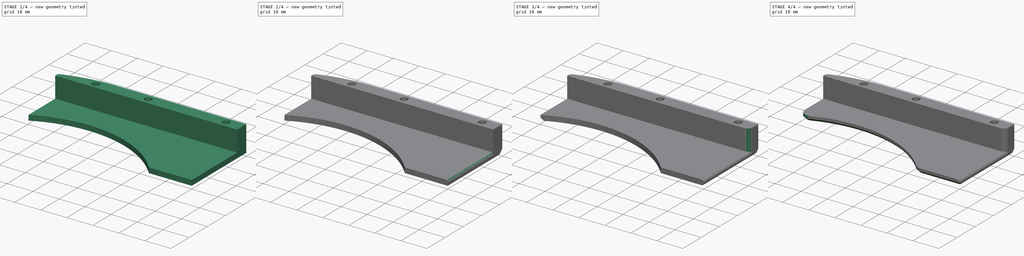
[diagram: build sequence overview — one tinted view per stage of 4, left to right]
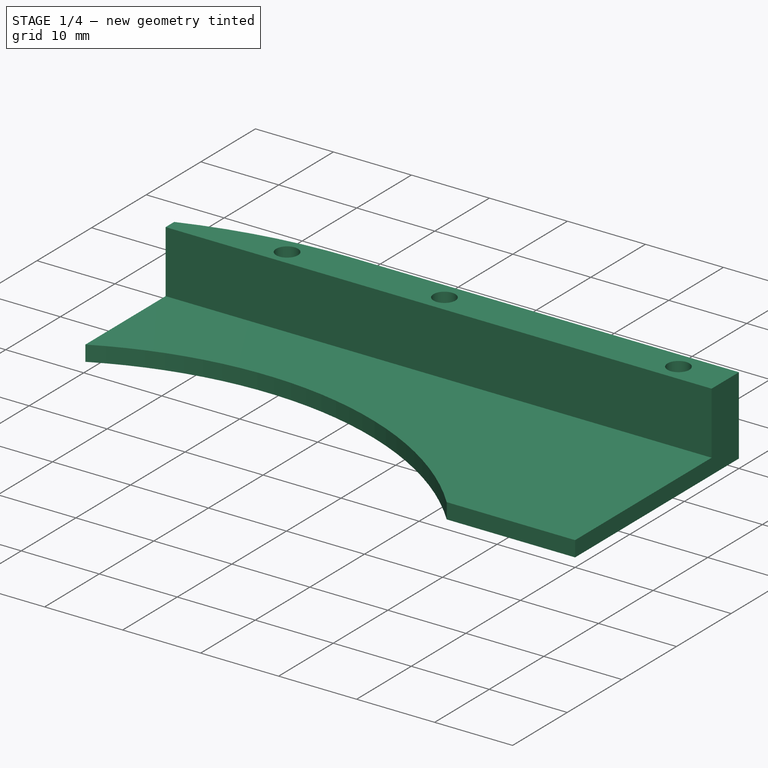
[diagram: stage 1 of 4 — iso view after this stage's code; geometry added in this stage tinted green]
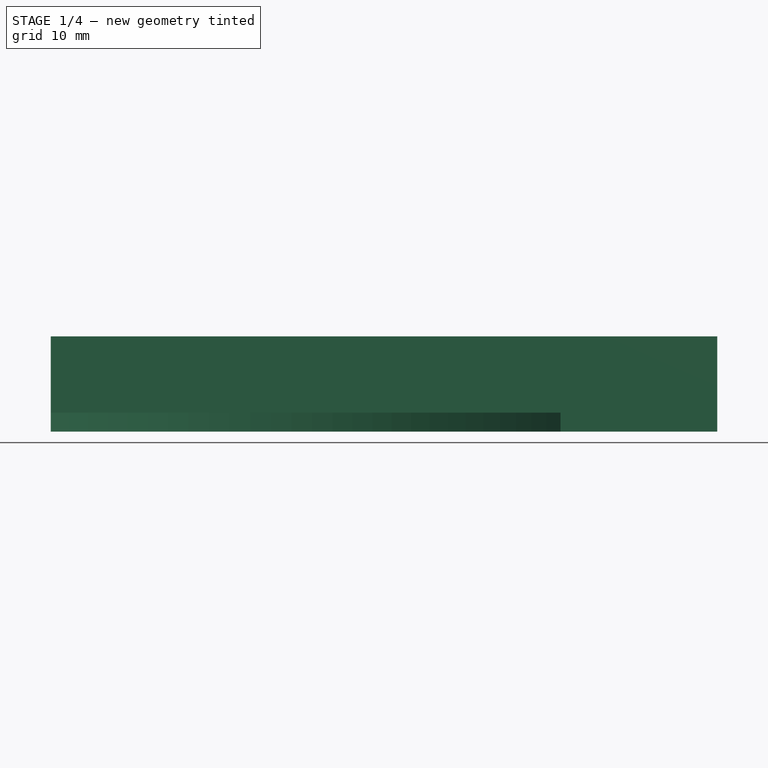
[diagram: stage 1 of 4 — front view after this stage's code; geometry added in this stage tinted green]
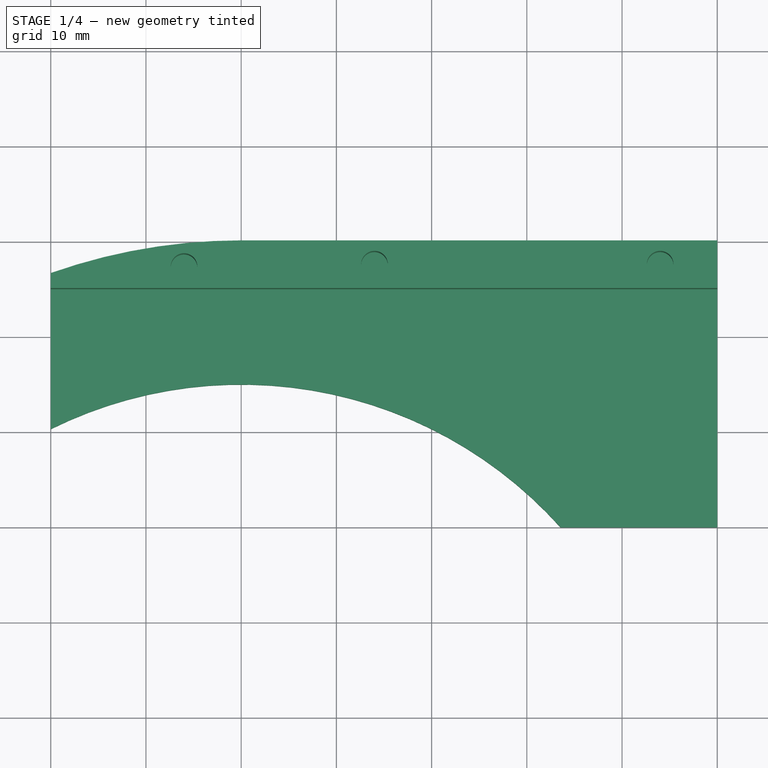
[diagram: stage 1 of 4 — top view after this stage's code; geometry added in this stage tinted green]
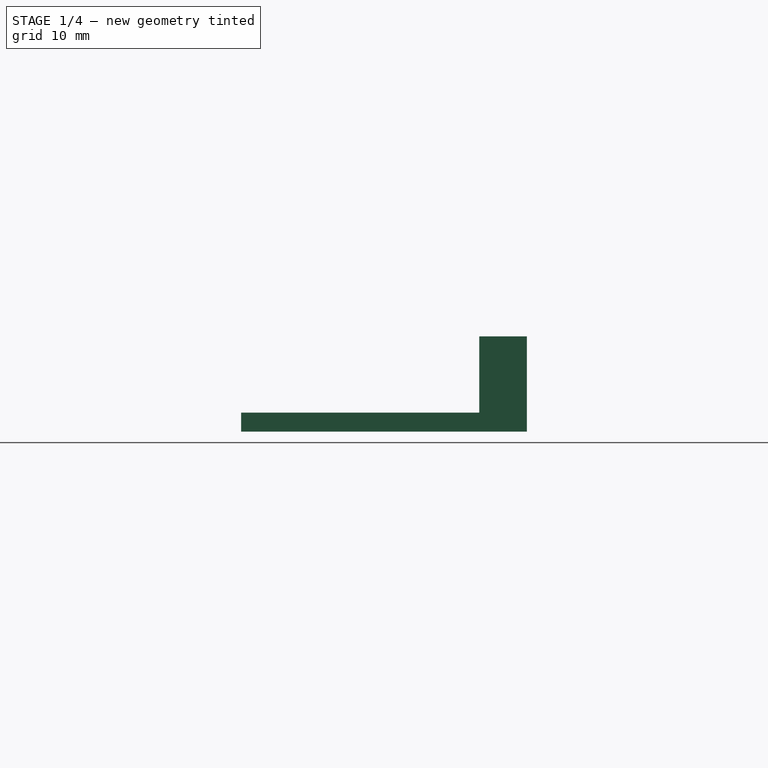
[diagram: stage 1 of 4 — right view after this stage's code; geometry added in this stage tinted green]
FCSTD DOCUMENT  (FreeCAD 0.16R)
Label: out3
License: All rights reserved
LicenseURL: http://en.wikipedia.org/wiki/All_rights_reserved
objects: PartDesign::Fillet×5, Sketcher::SketchObject×4, PartDesign::Chamfer×4, PartDesign::Pad×2, PartDesign::Pocket×1
note: 19 computed .brp shape members not serialized (recipe doc carries the construction recipe); baked Part::Feature solids carry a one-line shape summary decoded from their .brp

FEATURE [Sketcher::SketchObject] Sketch001
  sketch-geometry (10):
    g0: LineSegment [constr] StartX=0 StartY=0 StartZ=0 EndX=43.8558 EndY=143.446 EndZ=0
    g1: Circle [constr] CenterX=0 CenterY=0 CenterZ=0 NormalX=0 NormalY=0 NormalZ=1 Radius=55
    g2: LineSegment [constr] StartX=0 StartY=55 StartZ=0 EndX=150 EndY=55 EndZ=0
    g3: LineSegment StartX=33.541 StartY=30 StartZ=0 EndX=50 EndY=30 EndZ=0
    g4: Circle [constr] CenterX=0 CenterY=0 CenterZ=0 NormalX=0 NormalY=0 NormalZ=1 Radius=35.4
    g5: ArcOfCircle CenterX=0 CenterY=0 CenterZ=0 NormalX=0 NormalY=0 NormalZ=1 Radius=60 StartAngle=1.5708 EndAngle=1.91063
    g6: ArcOfCircle CenterX=0 CenterY=0 CenterZ=0 NormalX=0 NormalY=0 NormalZ=1 Radius=45 StartAngle=0.729728 EndAngle=2.03135
    g7: LineSegment StartX=50 StartY=30 StartZ=0 EndX=50 EndY=60 EndZ=0
    g8: LineSegment StartX=0 StartY=60 StartZ=0 EndX=50 EndY=60 EndZ=0
    g9: LineSegment StartX=-20 StartY=40.3113 StartZ=0 EndX=-20 EndY=56.5685 EndZ=0
  constraints (30):
    c: Coincident(g0,g-1)
    c: Distance(g0) = 150
    c: Angle(g0) = 1.27409
    c: Coincident(g1,g-1)
    c: Radius(g1) = 55
    c: Horizontal(g2)
    c: Horizontal(g3)
    c: Radius(g4) = 35.4
    c: Coincident(g4,g-1)
    c: Coincident(g5,g-1)
    c: Radius(g5) = 60
    c: Coincident(g6,g-1)
    c: Radius(g6) = 45
    c: Vertical(g7)
    c: PointOnObject(g8,g5)
    c: Coincident(g8,g7)
    c: Horizontal(g8)
    c: Coincident(g7,g3)
    c: Coincident(g6,g3)
    c: Coincident(g8,g5)
    c: Coincident(g9,g6)
    c: Coincident(g9,g5)
    c: Vertical(g9)
    c: DistanceX(g5,g-1) = 20
    c: DistanceX(g7) = 50
    c: Distance(g7) = 30
    c: PointOnObject(g5,g-2)
    c: Distance(g2) = 150
    c: PointOnObject(g2,g1)
    c: PointOnObject(g2,g-2)
FEATURE [PartDesign::Pad] Pad
  Length = 2
  Length2 = 100
  Sketch = -> Sketch001
  Type = 0
FEATURE [Sketcher::SketchObject] Sketch
  Placement = pos=(0,0,2) rot=(0,0,1;0rad)
  Support = -> Pad [Face8]
FEATURE [Sketcher::SketchObject] Sketch002
  Placement = pos=(0,0,2) rot=(0,0,1;0rad)
  Support = -> Pad [Face8]
  sketch-geometry (9):
    g0: LineSegment [constr] StartX=0 StartY=0 StartZ=0 EndX=43.8558 EndY=143.446 EndZ=0
    g1: Circle [constr] CenterX=0 CenterY=0 CenterZ=0 NormalX=0 NormalY=0 NormalZ=1 Radius=55
    g2: LineSegment StartX=29.7023 StartY=55 StartZ=0 EndX=50 EndY=55 EndZ=0
    g3: Circle [constr] CenterX=0 CenterY=0 CenterZ=0 NormalX=0 NormalY=0 NormalZ=1 Radius=35.4
    g4: ArcOfCircle CenterX=0 CenterY=0 CenterZ=0 NormalX=0 NormalY=0 NormalZ=1 Radius=60 StartAngle=1.5708 EndAngle=1.91063
    g5: LineSegment StartX=50 StartY=55 StartZ=0 EndX=50 EndY=60 EndZ=0
    g6: LineSegment StartX=0 StartY=60 StartZ=0 EndX=50 EndY=60 EndZ=0
    g7: LineSegment StartX=-20 StartY=55 StartZ=0 EndX=-20 EndY=56.5685 EndZ=0
    g8: LineSegment StartX=-20 StartY=55 StartZ=0 EndX=50 EndY=55 EndZ=0
  constraints (25):
    c: Coincident(g0,g-1)
    c: Distance(g0) = 150
    c: Angle(g0) = 1.27409
    c: Coincident(g1,g-1)
    c: Radius(g1) = 55
    c: Horizontal(g2)
    c: Radius(g3) = 35.4
    c: Coincident(g3,g-1)
    c: Coincident(g4,g-1)
    c: Radius(g4) = 60
    c: Vertical(g5)
    c: Coincident(g6,g5)
    c: Horizontal(g6)
    c: Coincident(g5,g2)
    c: Coincident(g6,g4)
    c: Coincident(g7,g4)
    c: Vertical(g7)
    c: DistanceX(g4,g-1) = 20
    c: DistanceX(g5) = 50
    c: Distance(g5) = 5
    c: PointOnObject(g4,g-2)
    c: Coincident(g8,g7)
    c: Coincident(g8,g2)
    c: Horizontal(g8)
    c: Distance(g2) = 20.2977
FEATURE [PartDesign::Pad] Pad001
  Length = 8
  Length2 = 100
  Sketch = -> Sketch002
  Type = 0
FEATURE [Sketcher::SketchObject] Sketch003
  ExternalGeometry = -> [Pad001]
  Placement = pos=(0,0,10) rot=(0,0,1;0rad)
  Support = -> Pad001 [Face13]
  sketch-geometry (3):
    g0: Circle CenterX=-6 CenterY=57.25 CenterZ=0 NormalX=0 NormalY=0 NormalZ=1 Radius=1.4
    g1: Circle CenterX=14 CenterY=57.5 CenterZ=0 NormalX=0 NormalY=0 NormalZ=1 Radius=1.4
    g2: Circle CenterX=44 CenterY=57.5 CenterZ=0 NormalX=0 NormalY=0 NormalZ=1 Radius=1.4
  constraints (9):
    c: Radius(g1) = 1.4
    c: Equal(g1,g0)
    c: Equal(g1,g2)
    c: Distance(g2,g-3) = 2.5
    c: Distance(g1,g-3) = 2.5
    c: Distance(g0,g-3) = 2.75
    c: Distance(g0,g-4) = 56
    c: Distance(g1,g-4) = 36
    c: Distance(g2,g-4) = 6
FEATURE [PartDesign::Pocket] Pocket
  Length = 8
  Sketch = -> Sketch003
  Type = 0
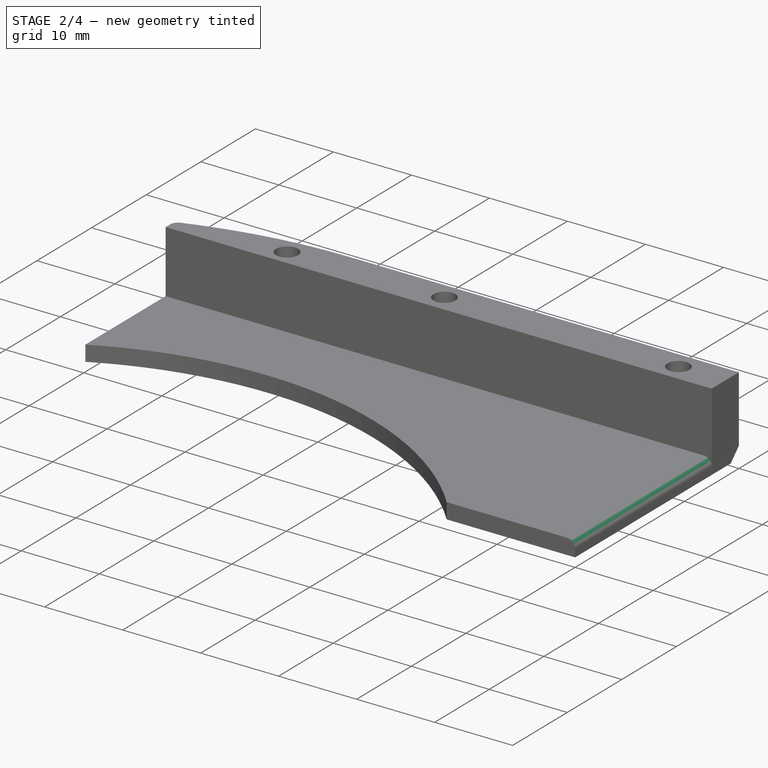
[diagram: stage 2 of 4 — iso view after this stage's code; geometry added in this stage tinted green]
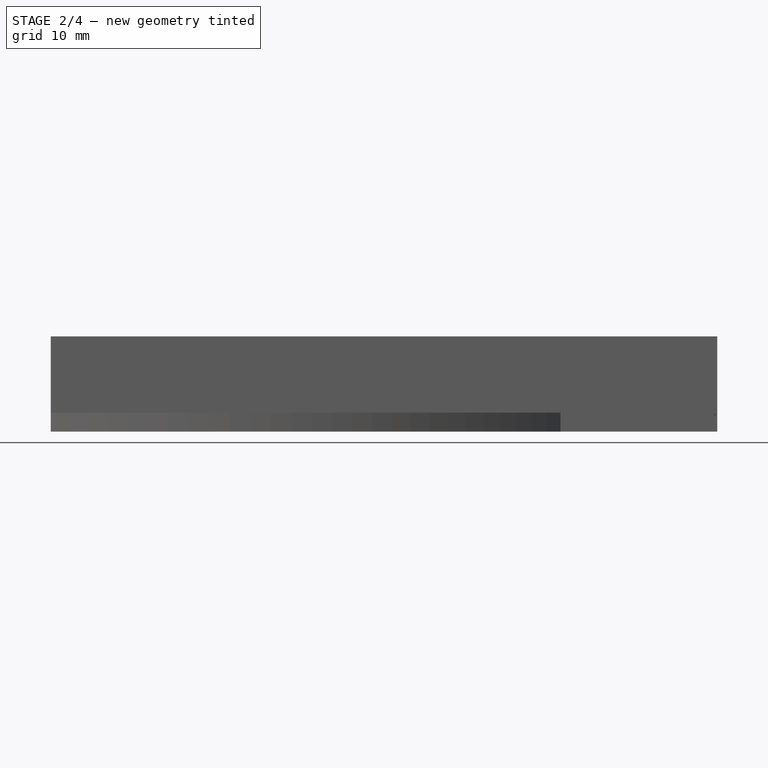
[diagram: stage 2 of 4 — front view after this stage's code; geometry added in this stage tinted green]
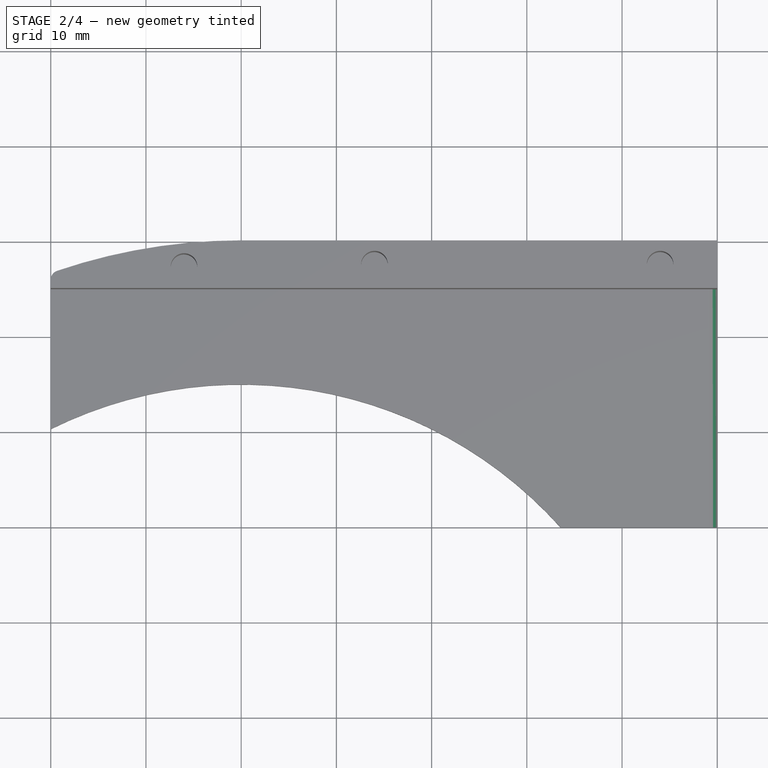
[diagram: stage 2 of 4 — top view after this stage's code; geometry added in this stage tinted green]
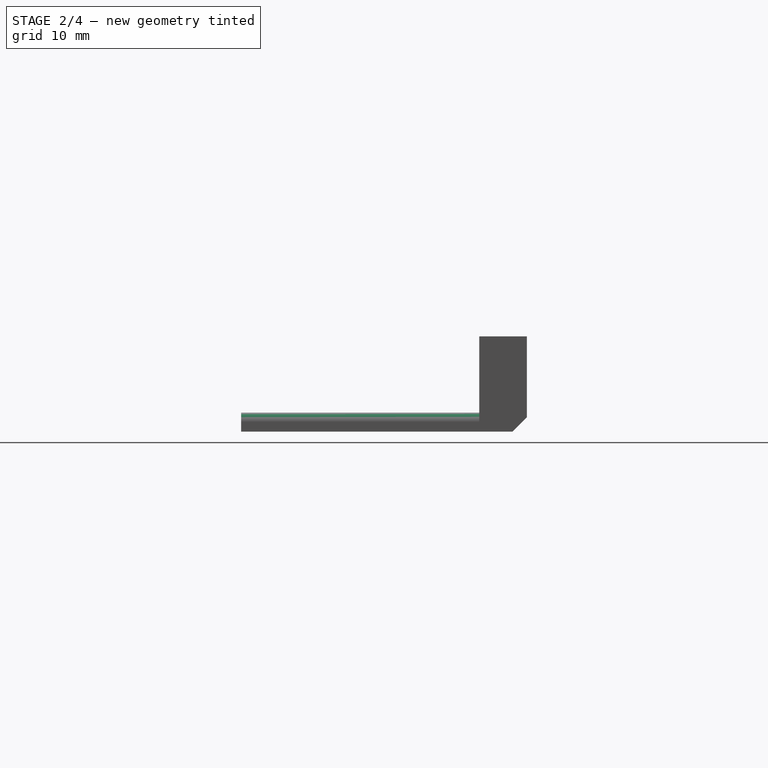
[diagram: stage 2 of 4 — right view after this stage's code; geometry added in this stage tinted green]
FEATURE [PartDesign::Fillet] Fillet
  Base = -> Pocket [Edge16]
  Radius = 1
FEATURE [PartDesign::Chamfer] Chamfer
  Base = -> Fillet [Edge14]
  Size = 1.5
FEATURE [PartDesign::Fillet] Fillet001
  Base = -> Chamfer [Edge43]
  Radius = 1
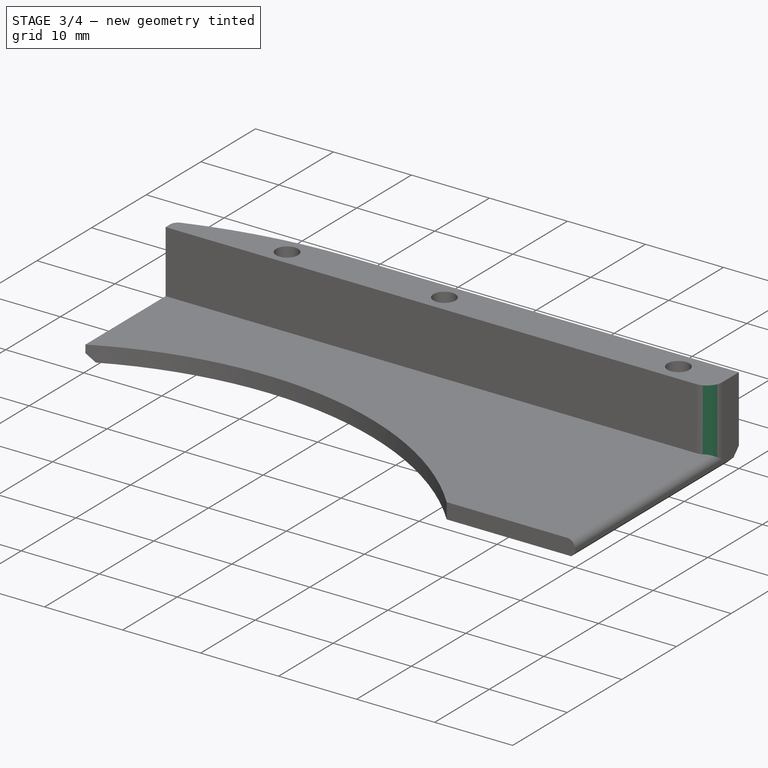
[diagram: stage 3 of 4 — iso view after this stage's code; geometry added in this stage tinted green]
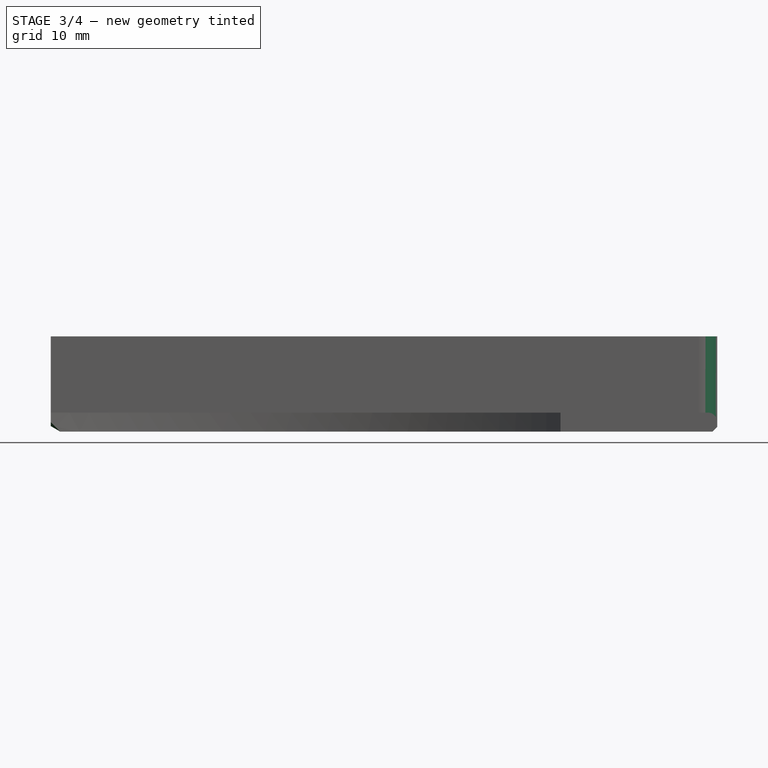
[diagram: stage 3 of 4 — front view after this stage's code; geometry added in this stage tinted green]
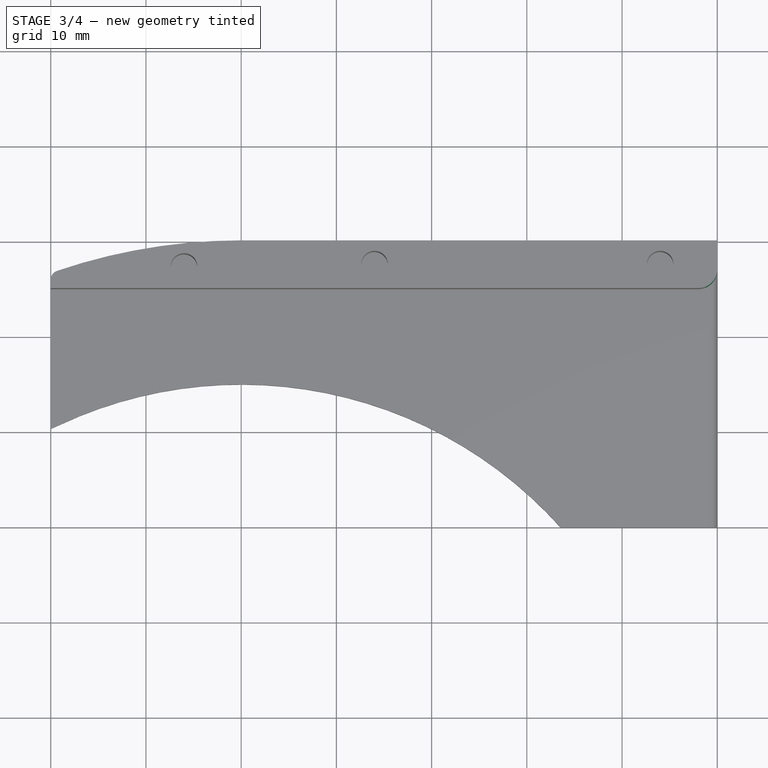
[diagram: stage 3 of 4 — top view after this stage's code; geometry added in this stage tinted green]
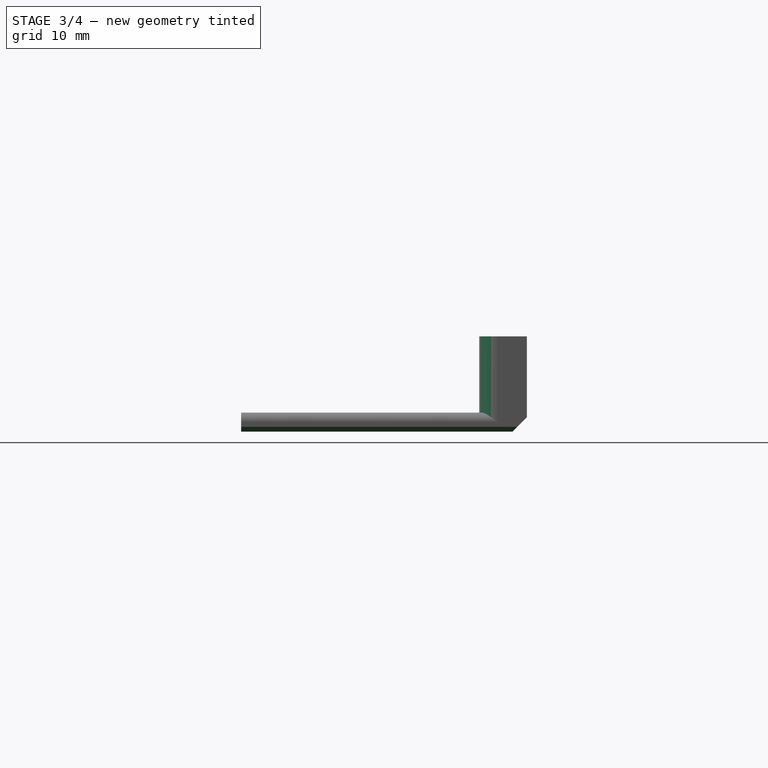
[diagram: stage 3 of 4 — right view after this stage's code; geometry added in this stage tinted green]
FEATURE [PartDesign::Chamfer] Chamfer001
  Base = -> Fillet001 [Edge7]
  Size = 0
FEATURE [PartDesign::Chamfer] Chamfer002
  Base = -> Chamfer001 [Edge19]
  Size = 0.5
FEATURE [PartDesign::Fillet] Fillet002
  Base = -> Chamfer002 [Edge42]
  Radius = 2
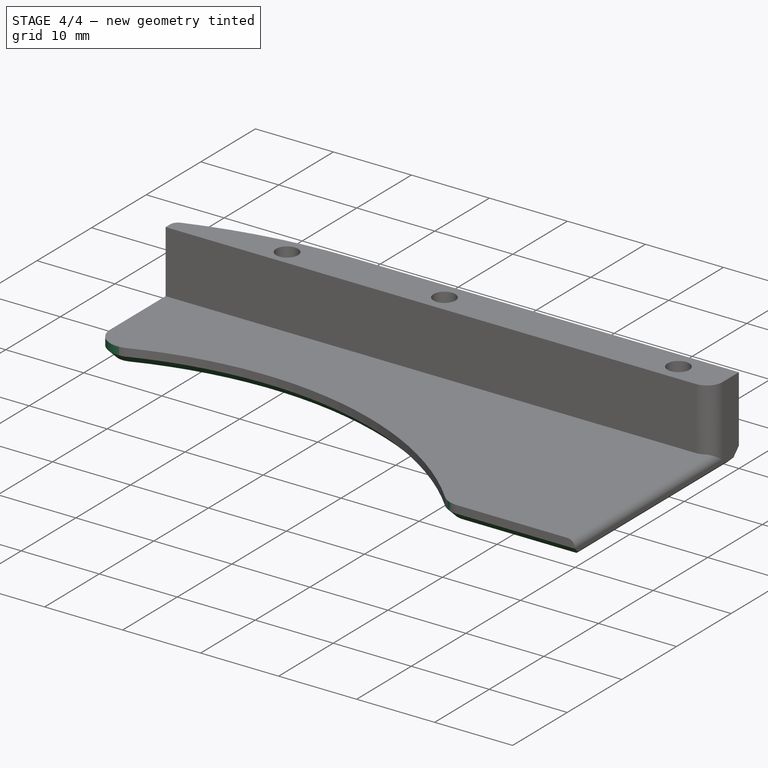
[diagram: stage 4 of 4 — iso view after this stage's code; geometry added in this stage tinted green]
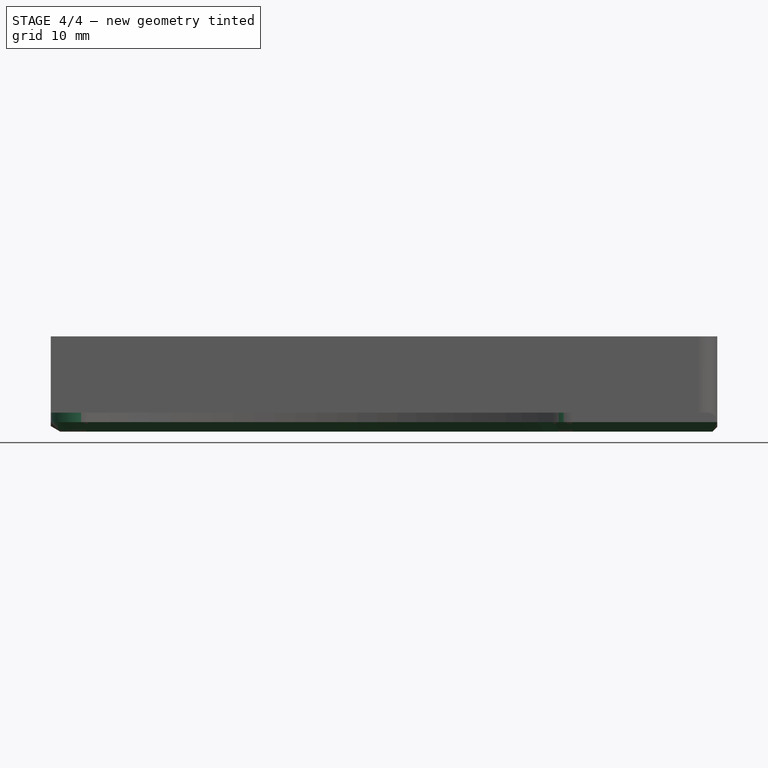
[diagram: stage 4 of 4 — front view after this stage's code; geometry added in this stage tinted green]
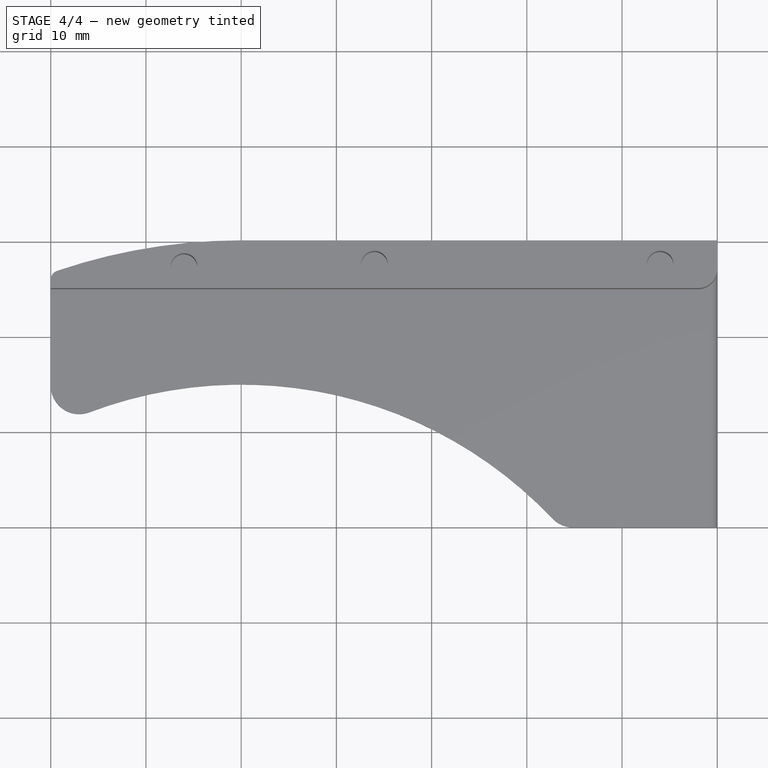
[diagram: stage 4 of 4 — top view after this stage's code; geometry added in this stage tinted green]
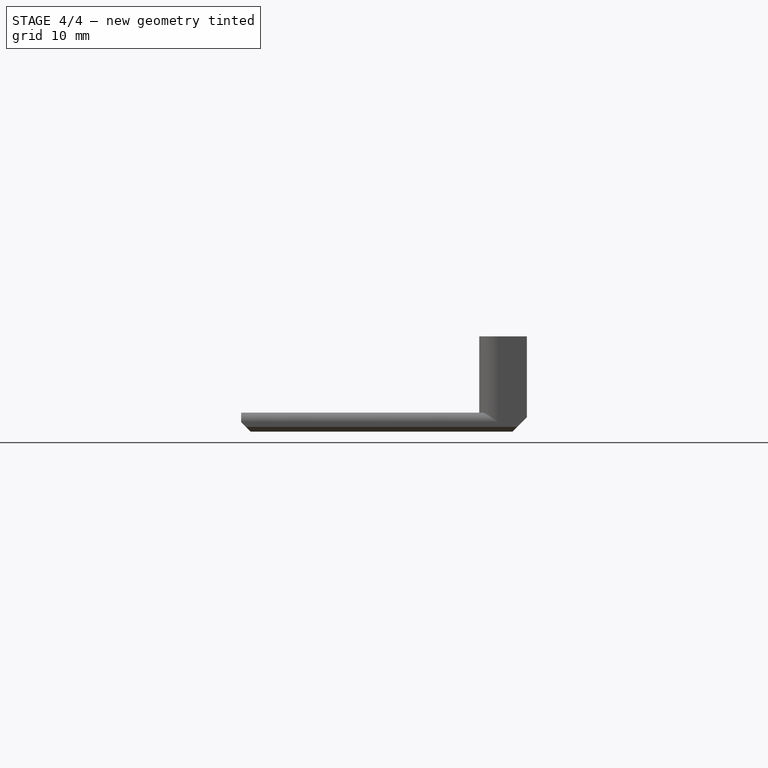
[diagram: stage 4 of 4 — right view after this stage's code; geometry added in this stage tinted green]
FEATURE [PartDesign::Fillet] Fillet003
  Base = -> Fillet002 [Edge50]
  Radius = 3
FEATURE [PartDesign::Fillet] Fillet004
  Base = -> Fillet003 [Edge20]
  Radius = 3
FEATURE [PartDesign::Chamfer] Chamfer003
  Base = -> Fillet004 [Edge11]
  Size = 1
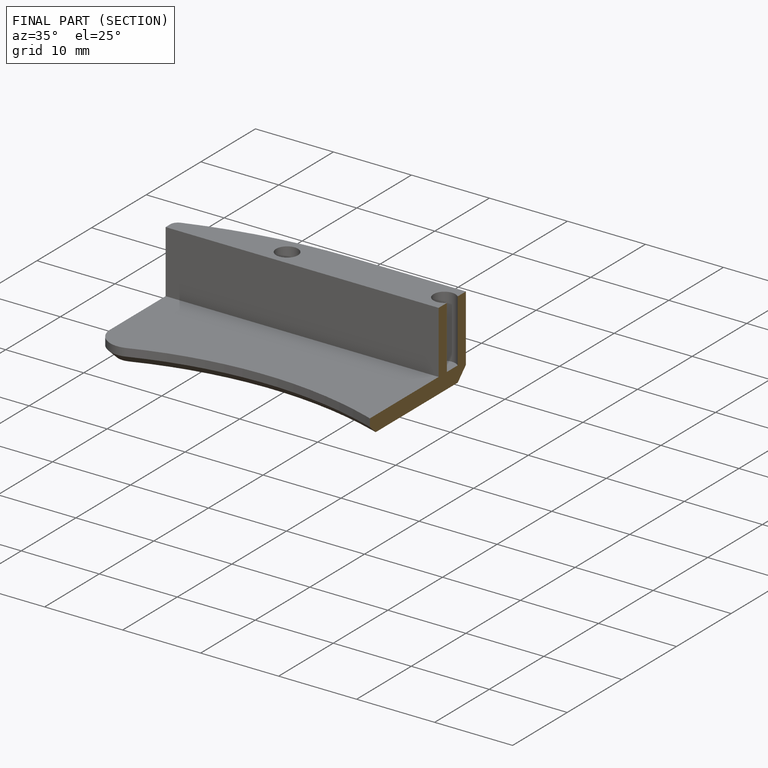
[diagram: finished part — half-section view (interior)]
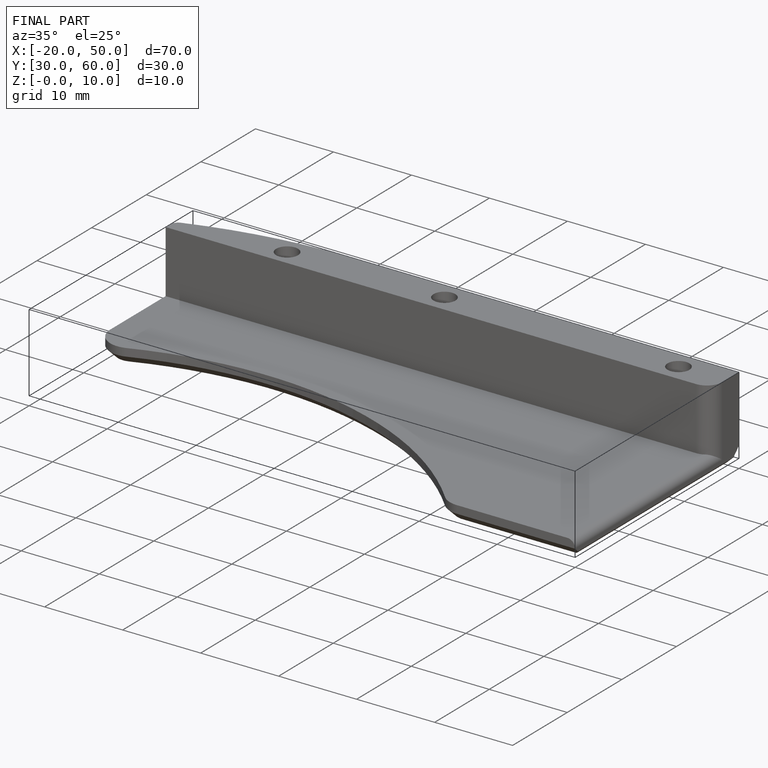
[diagram: finished part — iso view with bounding-box wireframe]
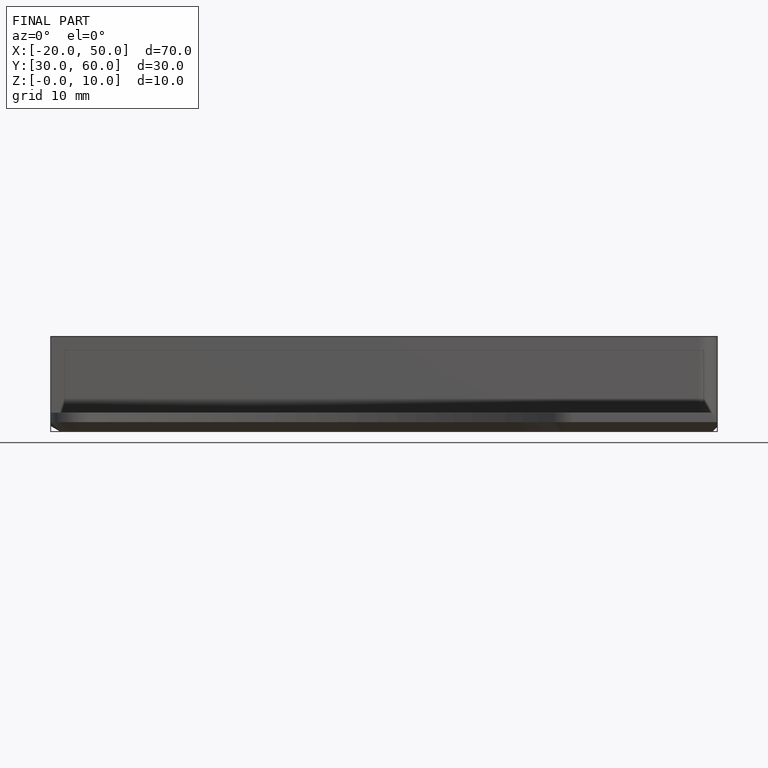
[diagram: finished part — front view with bounding-box wireframe]
